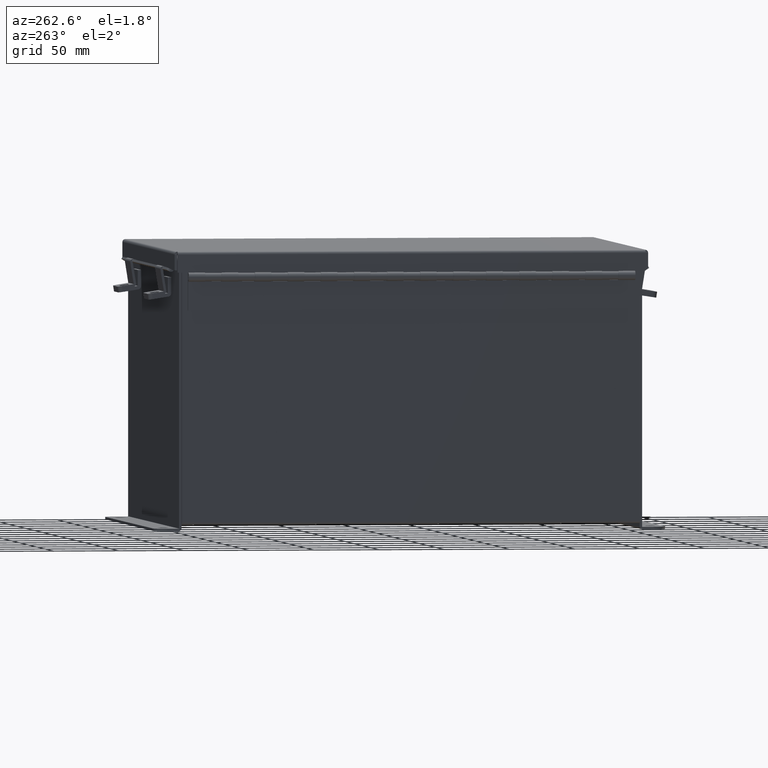
[diagram: clean part render]
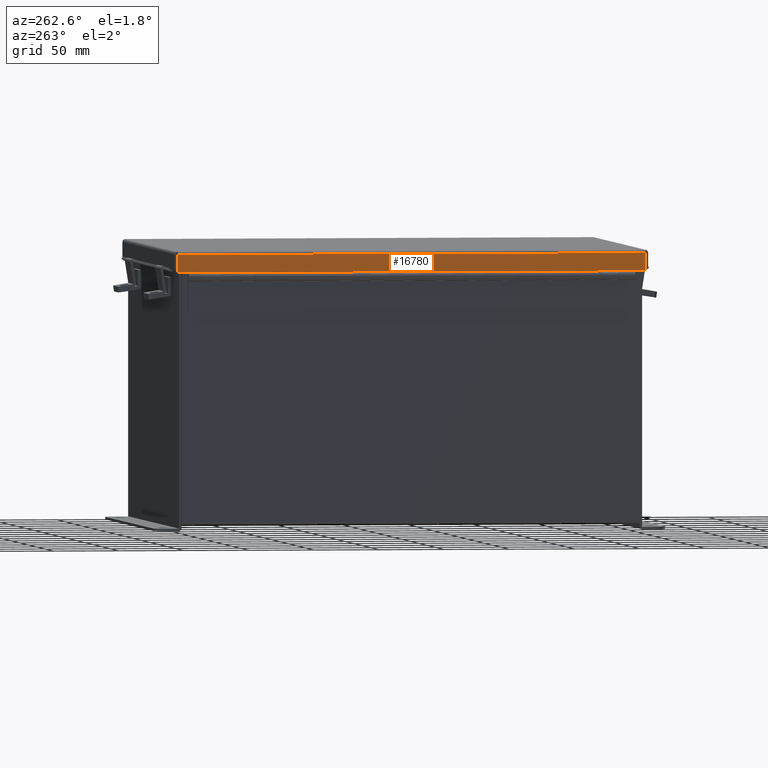
[diagram: same view with one face highlighted and labeled with its STEP entity id]
A machine part, auxiliary view. The second image highlights one B-rep face of the part: STEP entity #16780.
In plain terms, the highlighted planar face has unit normal (1, -0, 0).
Its self-contained STEP definition (entity closure, byte-faithful):
#644 = ORIENTED_EDGE ( 'NONE', *, *, #11579, .F. ) ;
#2449 = VERTEX_POINT ( 'NONE', #15557 ) ;
#2610 = CARTESIAN_POINT ( 'NONE',  ( 6.156250000000000000, -1.140647937826210200E-017, -2.470993480592342900E-014 ) ) ;
#3721 = LINE ( 'NONE', #16998, #10912 ) ;
#3741 = DIRECTION ( 'NONE',  ( -3.032131462846052700E-031, -1.000000000000000000, -7.634859021594447800E-017 ) ) ;
#3798 = DIRECTION ( 'NONE',  ( 0.0000000000000000000, -1.000000000000000000, 0.0000000000000000000 ) ) ;
#5211 = LINE ( 'NONE', #10950, #16164 ) ;
#5506 = DIRECTION ( 'NONE',  ( 3.971430846686188400E-015, 0.0000000000000000000, 1.000000000000000000 ) ) ;
#5923 = CARTESIAN_POINT ( 'NONE',  ( 6.156250000000000000, 7.074478932188133800, 0.01300000000000089600 ) ) ;
#6488 = VERTEX_POINT ( 'NONE', #13315 ) ;
#7372 = EDGE_CURVE ( 'NONE', #15246, #12686, #17858, .T. ) ;
#7489 = ORIENTED_EDGE ( 'NONE', *, *, #17432, .T. ) ;
#9392 = FACE_OUTER_BOUND ( 'NONE', #14101, .T. ) ;
#9795 = DIRECTION ( 'NONE',  ( 3.971430846686188400E-015, -0.0000000000000000000, 1.000000000000000000 ) ) ;
#9982 = ORIENTED_EDGE ( 'NONE', *, *, #10252, .T. ) ;
#10252 = EDGE_CURVE ( 'NONE', #6488, #2449, #5211, .T. ) ;
#10912 = VECTOR ( 'NONE', #18467, 39.37007874015748100 ) ;
#10950 = CARTESIAN_POINT ( 'NONE',  ( 6.156250000000002700, -1.140647937826210200E-017, 0.5503000000000000100 ) ) ;
#11136 = VECTOR ( 'NONE', #3741, 39.37007874015748100 ) ;
#11579 = EDGE_CURVE ( 'NONE', #12686, #2449, #14804, .T. ) ;
#11695 = ORIENTED_EDGE ( 'NONE', *, *, #7372, .F. ) ;
#11711 = CARTESIAN_POINT ( 'NONE',  ( 6.156250000000000000, -7.074478932188138300, 0.01300000000000035800 ) ) ;
#11912 = VECTOR ( 'NONE', #9795, 39.37007874015748100 ) ;
#12110 = AXIS2_PLACEMENT_3D ( 'NONE', #2610, #14088, #5506 ) ;
#12669 = PLANE ( 'NONE',  #12110 ) ;
#12686 = VERTEX_POINT ( 'NONE', #11711 ) ;
#13315 = CARTESIAN_POINT ( 'NONE',  ( 6.156250000000002700, 7.074478932188133000, 0.5503000000000000100 ) ) ;
#14088 = DIRECTION ( 'NONE',  ( -1.000000000000000000, 0.0000000000000000000, 3.971430846686188400E-015 ) ) ;
#14101 = EDGE_LOOP ( 'NONE', ( #11695, #7489, #9982, #644 ) ) ;
#14804 = LINE ( 'NONE', #18382, #11912 ) ;
#15246 = VERTEX_POINT ( 'NONE', #5923 ) ;
#15386 = CARTESIAN_POINT ( 'NONE',  ( 6.156250000000000000, -7.156250000000001800, 0.01299999999999981200 ) ) ;
#15557 = CARTESIAN_POINT ( 'NONE',  ( 6.156250000000002700, -7.074478932188137400, 0.5503000000000000100 ) ) ;
#16164 = VECTOR ( 'NONE', #3798, 39.37007874015748100 ) ;
#16780 = ADVANCED_FACE ( 'NONE', ( #9392 ), #12669, .F. ) ;
#16998 = CARTESIAN_POINT ( 'NONE',  ( 6.156250000000000000, 7.074478932188133800, -2.470993480592342900E-014 ) ) ;
#17432 = EDGE_CURVE ( 'NONE', #15246, #6488, #3721, .T. ) ;
#17858 = LINE ( 'NONE', #15386, #11136 ) ;
#18382 = CARTESIAN_POINT ( 'NONE',  ( 6.156250000000000000, -7.074478932188137400, -2.966658842474588900E-016 ) ) ;
#18467 = DIRECTION ( 'NONE',  ( 3.971430846686188400E-015, 0.0000000000000000000, 1.000000000000000000 ) ) ;